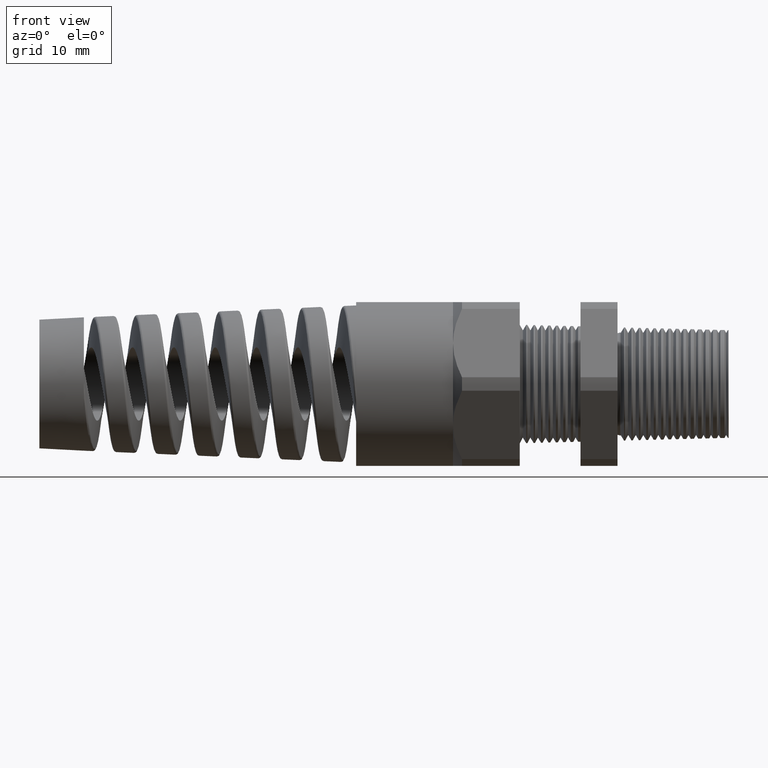
[diagram: clean part render]
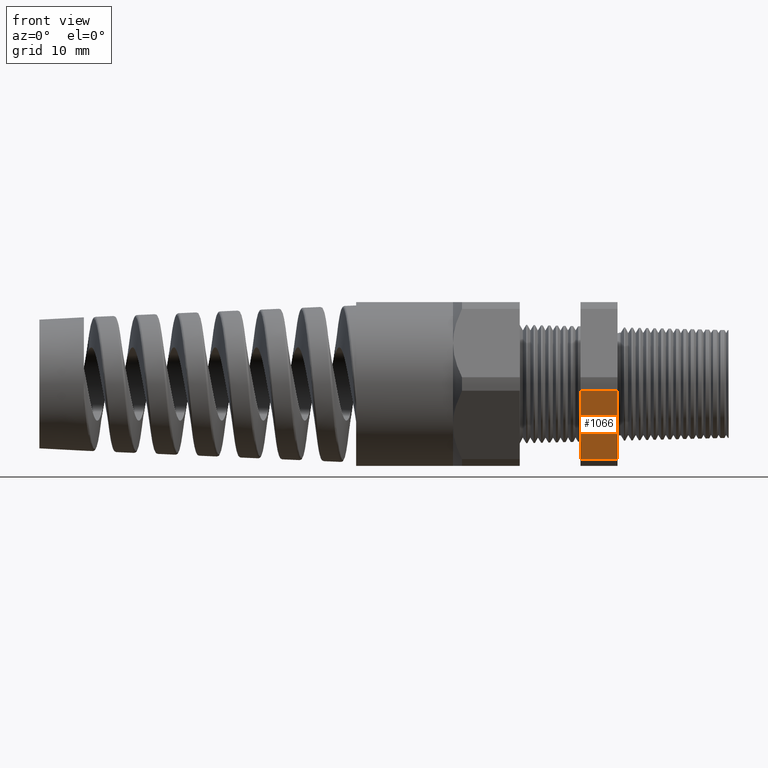
[diagram: same view with one face highlighted and labeled with its STEP entity id]
A machine part, front view. The second image highlights one B-rep face of the part: STEP entity #1066.
In plain terms, the highlighted planar face has unit normal (0, -0.866, -0.5).
Its self-contained STEP definition (entity closure, byte-faithful):
#610 = EDGE_CURVE ( 'NONE', #637, #611, #3793, .T. ) ;
#611 = VERTEX_POINT ( 'NONE', #3789 ) ;
#637 = VERTEX_POINT ( 'NONE', #3802 ) ;
#1011 = EDGE_CURVE ( 'NONE', #611, #1012, #4856, .T. ) ;
#1012 = VERTEX_POINT ( 'NONE', #4852 ) ;
#1066 = ADVANCED_FACE ( 'NONE', ( #4934 ), #4933, .T. ) ;
#1067 = EDGE_LOOP ( 'NONE', ( #1068, #1069, #1070, #1073 ) ) ;
#1068 = ORIENTED_EDGE ( 'NONE', *, *, #1011, .F. ) ;
#1069 = ORIENTED_EDGE ( 'NONE', *, *, #610, .F. ) ;
#1070 = ORIENTED_EDGE ( 'NONE', *, *, #1071, .T. ) ;
#1071 = EDGE_CURVE ( 'NONE', #637, #1072, #4931, .T. ) ;
#1072 = VERTEX_POINT ( 'NONE', #4924 ) ;
#1073 = ORIENTED_EDGE ( 'NONE', *, *, #1074, .F. ) ;
#1074 = EDGE_CURVE ( 'NONE', #1012, #1072, #4987, .T. ) ;
#3789 = CARTESIAN_POINT ( 'NONE',  ( -0.3100000000000000000, -0.2719366022533510900, -0.3989919884595464200 ) ) ;
#3790 = DIRECTION ( 'NONE',  ( 0.0000000000000000000, 0.5000000000000001100, -0.8660254037844386000 ) ) ;
#3791 = VECTOR ( 'NONE', #3790, 39.37007874015748100 ) ;
#3792 = CARTESIAN_POINT ( 'NONE',  ( -0.3100000000000000000, -0.1592210506462307100, -0.5942210506462308800 ) ) ;
#3793 = LINE ( 'NONE', #3792, #3791 ) ;
#3802 = CARTESIAN_POINT ( 'NONE',  ( -0.3100000000000000000, -0.4815054990391102700, -0.03600801154045379900 ) ) ;
#4852 = CARTESIAN_POINT ( 'NONE',  ( -0.5068503937007874400, -0.2719366022533510900, -0.3989919884595464200 ) ) ;
#4853 = DIRECTION ( 'NONE',  ( -1.000000000000000000, -0.0000000000000000000, -0.0000000000000000000 ) ) ;
#4854 = VECTOR ( 'NONE', #4853, 39.37007874015748100 ) ;
#4855 = CARTESIAN_POINT ( 'NONE',  ( 0.2800000000000000300, -0.2719366022533510900, -0.3989919884595464200 ) ) ;
#4856 = LINE ( 'NONE', #4855, #4854 ) ;
#4924 = CARTESIAN_POINT ( 'NONE',  ( -0.5068503937007874400, -0.4815054990391102700, -0.03600801154045379900 ) ) ;
#4925 = DIRECTION ( 'NONE',  ( -1.000000000000000000, -0.0000000000000000000, -0.0000000000000000000 ) ) ;
#4926 = VECTOR ( 'NONE', #4925, 39.37007874015748100 ) ;
#4927 = CARTESIAN_POINT ( 'NONE',  ( 0.2800000000000000300, -0.4815054990391102700, -0.03600801154045379900 ) ) ;
#4928 = DIRECTION ( 'NONE',  ( 0.0000000000000000000, 0.5000000000000001100, -0.8660254037844386000 ) ) ;
#4929 = DIRECTION ( 'NONE',  ( 0.0000000000000000000, -0.8660254037844386000, -0.5000000000000001100 ) ) ;
#4930 = AXIS2_PLACEMENT_3D ( 'NONE', #4932, #4929, #4928 ) ;
#4931 = LINE ( 'NONE', #4927, #4926 ) ;
#4932 = CARTESIAN_POINT ( 'NONE',  ( 0.2800000000000000300, -0.2719366022533512600, -0.3989919884595462500 ) ) ;
#4933 = PLANE ( 'NONE',  #4930 ) ;
#4934 = FACE_OUTER_BOUND ( 'NONE', #1067, .T. ) ;
#4984 = DIRECTION ( 'NONE',  ( 0.0000000000000000000, -0.5000000000000001100, 0.8660254037844386000 ) ) ;
#4985 = VECTOR ( 'NONE', #4984, 39.37007874015748100 ) ;
#4986 = CARTESIAN_POINT ( 'NONE',  ( -0.5068503937007874400, -0.1592210506462307100, -0.5942210506462308800 ) ) ;
#4987 = LINE ( 'NONE', #4986, #4985 ) ;